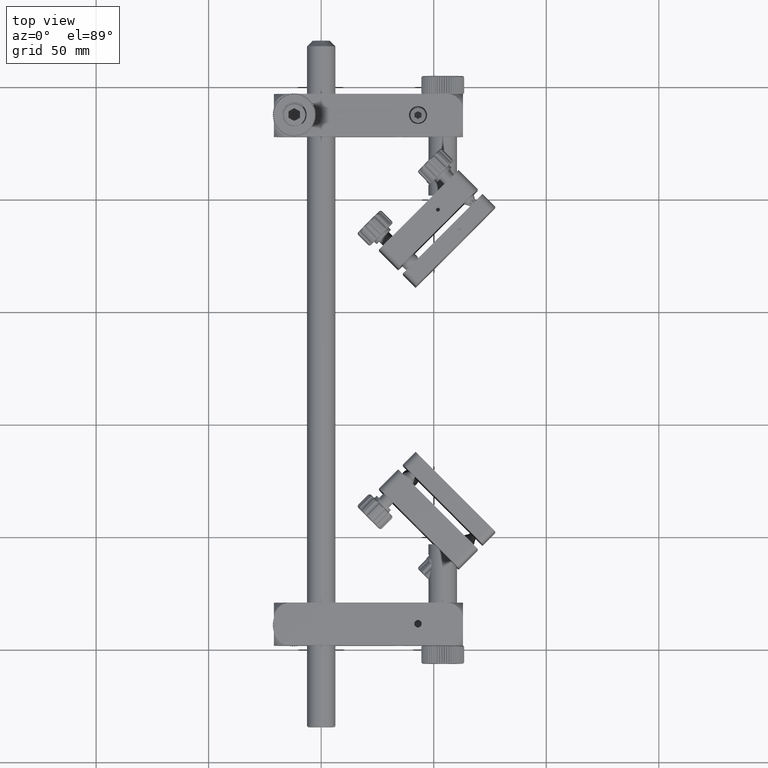
[diagram: clean part render]
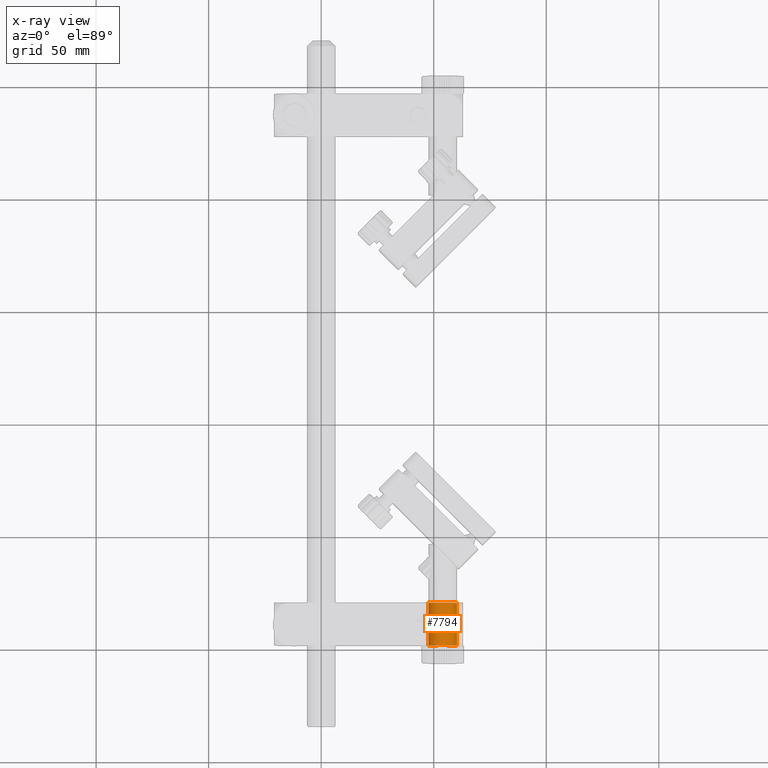
[diagram: x-ray — body ghosted, one internal face saturated and labeled with its STEP entity id]
A machine part, top view, then the same camera in x-ray: the body is ghosted and one INTERNAL B-rep face — a face not visible from any outside direction — is saturated and labeled: STEP entity #7794.
In plain terms, the highlighted cylindrical surface (edge-blend (fillet) strip) has radius 6.35 mm, axis along (0, -1, -0).
Its self-contained STEP definition (entity closure, byte-faithful):
#2031 = VERTEX_POINT ( 'NONE', #26835 ) ;
#6315 = CARTESIAN_POINT ( 'NONE',  ( 47.69444689182619612, 70.47653311057187864, 0.7499999999999954481 ) ) ;
#6810 = CIRCLE ( 'NONE', #14901, 6.349999999999995204 ) ;
#7794 = ADVANCED_FACE ( 'NONE', ( #17156 ), #53848, .F. ) ;
#8903 = CARTESIAN_POINT ( 'NONE',  ( 60.30555310817373993, 70.47653311057187864, 0.7499999999999941158 ) ) ;
#11525 = AXIS2_PLACEMENT_3D ( 'NONE', #48638, #15721, #25006 ) ;
#12455 = DIRECTION ( 'NONE',  ( 1.220538237113588090E-18, -1.000000000000000000, -3.223279524194503275E-16 ) ) ;
#12611 = VECTOR ( 'NONE', #33224, 1000.000000000000000 ) ;
#14233 = DIRECTION ( 'NONE',  ( 0.000000000000000000, 0.000000000000000000, -1.000000000000000000 ) ) ;
#14901 = AXIS2_PLACEMENT_3D ( 'NONE', #56258, #12455, #52401 ) ;
#15387 = EDGE_LOOP ( 'NONE', ( #47617, #54783, #60277, #26568 ) ) ;
#15721 = DIRECTION ( 'NONE',  ( 1.220538237113588090E-18, -1.000000000000000000, -3.223279524194503275E-16 ) ) ;
#16255 = EDGE_CURVE ( 'NONE', #2031, #19423, #48300, .T. ) ;
#17156 = FACE_OUTER_BOUND ( 'NONE', #15387, .T. ) ;
#19423 = VERTEX_POINT ( 'NONE', #6315 ) ;
#19835 = DIRECTION ( 'NONE',  ( 1.220538237113588090E-18, -1.000000000000000000, -3.223279524194503275E-16 ) ) ;
#23294 = LINE ( 'NONE', #8903, #12611 ) ;
#25006 = DIRECTION ( 'NONE',  ( 0.000000000000000000, 0.000000000000000000, -1.000000000000000000 ) ) ;
#26568 = ORIENTED_EDGE ( 'NONE', *, *, #60779, .T. ) ;
#26835 = CARTESIAN_POINT ( 'NONE',  ( 60.30555310817373993, 70.47653311057187864, 0.7499999999999941158 ) ) ;
#28965 = EDGE_CURVE ( 'NONE', #29916, #61509, #6810, .T. ) ;
#29916 = VERTEX_POINT ( 'NONE', #58167 ) ;
#33224 = DIRECTION ( 'NONE',  ( 1.220538237113588090E-18, -1.000000000000000000, -3.223279524194503275E-16 ) ) ;
#34388 = CARTESIAN_POINT ( 'NONE',  ( 53.99999999999995737, 70.47653311057187864, 3.455627572671293405E-15 ) ) ;
#38219 = VECTOR ( 'NONE', #19835, 1000.000000000000000 ) ;
#47617 = ORIENTED_EDGE ( 'NONE', *, *, #28965, .T. ) ;
#47927 = LINE ( 'NONE', #62646, #38219 ) ;
#48300 = CIRCLE ( 'NONE', #11525, 6.349999999999995204 ) ;
#48638 = CARTESIAN_POINT ( 'NONE',  ( 53.99999999999995737, 70.47653311057187864, 3.455627572671293405E-15 ) ) ;
#50100 = AXIS2_PLACEMENT_3D ( 'NONE', #34388, #58679, #14233 ) ;
#52401 = DIRECTION ( 'NONE',  ( 0.000000000000000000, 0.000000000000000000, -1.000000000000000000 ) ) ;
#53848 = CYLINDRICAL_SURFACE ( 'NONE', #50100, 6.349999999999995204 ) ;
#54030 = EDGE_CURVE ( 'NONE', #19423, #61509, #47927, .T. ) ;
#54783 = ORIENTED_EDGE ( 'NONE', *, *, #54030, .F. ) ;
#56258 = CARTESIAN_POINT ( 'NONE',  ( 53.99999999999995737, 51.47653311057186443, -2.668603523298259958E-15 ) ) ;
#56272 = CARTESIAN_POINT ( 'NONE',  ( 47.69444689182619612, 51.47653311057186443, 0.7499999999999896749 ) ) ;
#58167 = CARTESIAN_POINT ( 'NONE',  ( 60.30555310817373993, 51.47653311057186443, 0.7499999999999876765 ) ) ;
#58679 = DIRECTION ( 'NONE',  ( 1.220538237113588090E-18, -1.000000000000000000, -3.223279524194503275E-16 ) ) ;
#60277 = ORIENTED_EDGE ( 'NONE', *, *, #16255, .F. ) ;
#60779 = EDGE_CURVE ( 'NONE', #2031, #29916, #23294, .T. ) ;
#61509 = VERTEX_POINT ( 'NONE', #56272 ) ;
#62646 = CARTESIAN_POINT ( 'NONE',  ( 47.69444689182619612, 70.47653311057187864, 0.7499999999999954481 ) ) ;